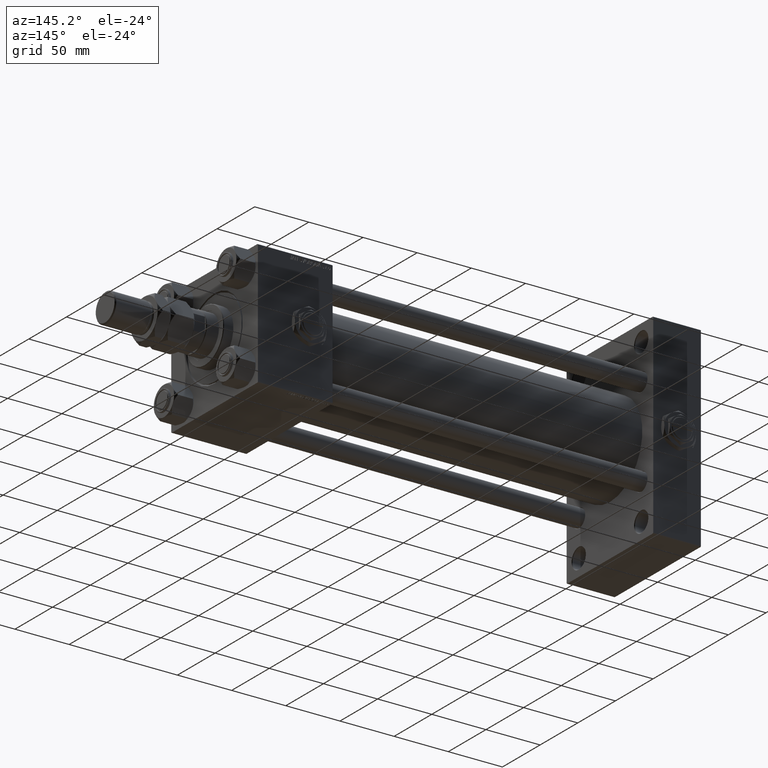
[diagram: clean part render]
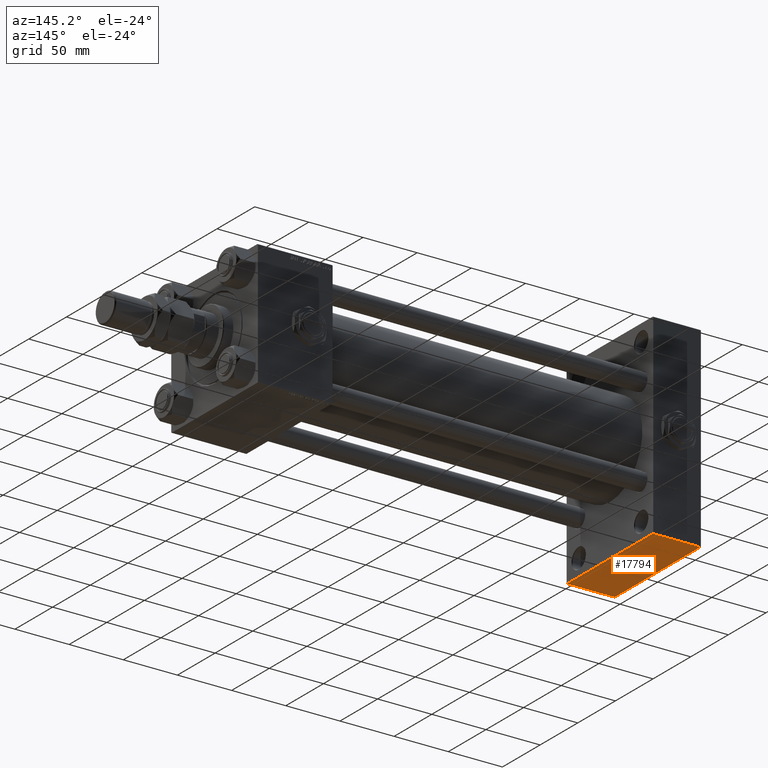
[diagram: same view with one face highlighted and labeled with its STEP entity id]
A machine part, auxiliary view. The second image highlights one B-rep face of the part: STEP entity #17794.
In plain terms, the highlighted planar face has unit normal (0, 0, -1).
Its self-contained STEP definition (entity closure, byte-faithful):
#26 = CARTESIAN_POINT ( 'NONE',  ( 0.000000000000000000, 57.50000000000000000, -90.00000000000000000 ) ) ;
#551 = CARTESIAN_POINT ( 'NONE',  ( 0.000000000000000000, -56.99999999999998579, -90.00000000000002842 ) ) ;
#1736 = EDGE_CURVE ( 'NONE', #28084, #9079, #47596, .T. ) ;
#4188 = VERTEX_POINT ( 'NONE', #33250 ) ;
#8438 = CARTESIAN_POINT ( 'NONE',  ( 44.00000000000000000, 57.50000000000000000, -90.00000000000000000 ) ) ;
#9079 = VERTEX_POINT ( 'NONE', #13828 ) ;
#11881 = EDGE_CURVE ( 'NONE', #46966, #28084, #45930, .T. ) ;
#13828 = CARTESIAN_POINT ( 'NONE',  ( 0.000000000000000000, -56.99999999999998579, -90.00000000000002842 ) ) ;
#13889 = CARTESIAN_POINT ( 'NONE',  ( 44.00000000000000000, 57.00000000000000000, -90.00000000000000000 ) ) ;
#16729 = DIRECTION ( 'NONE',  ( 0.000000000000000000, -1.000000000000000000, -2.413528314402514583E-16 ) ) ;
#17794 = ADVANCED_FACE ( 'NONE', ( #50208 ), #29405, .T. ) ;
#19062 = ORIENTED_EDGE ( 'NONE', *, *, #32206, .F. ) ;
#19406 = ORIENTED_EDGE ( 'NONE', *, *, #28180, .T. ) ;
#21217 = LINE ( 'NONE', #50502, #39337 ) ;
#21286 = EDGE_LOOP ( 'NONE', ( #19062, #19406, #24832, #38137 ) ) ;
#24653 = AXIS2_PLACEMENT_3D ( 'NONE', #33797, #41450, #46095 ) ;
#24832 = ORIENTED_EDGE ( 'NONE', *, *, #11881, .T. ) ;
#25909 = VECTOR ( 'NONE', #50648, 1000.000000000000000 ) ;
#28069 = CARTESIAN_POINT ( 'NONE',  ( 44.00000000000000000, -56.99999999999998579, -90.00000000000002842 ) ) ;
#28084 = VERTEX_POINT ( 'NONE', #28069 ) ;
#28180 = EDGE_CURVE ( 'NONE', #4188, #46966, #21217, .T. ) ;
#29405 = PLANE ( 'NONE',  #24653 ) ;
#29962 = DIRECTION ( 'NONE',  ( 1.000000000000000000, 0.000000000000000000, 0.000000000000000000 ) ) ;
#32206 = EDGE_CURVE ( 'NONE', #4188, #9079, #37530, .T. ) ;
#33250 = CARTESIAN_POINT ( 'NONE',  ( 0.000000000000000000, 57.00000000000000000, -90.00000000000000000 ) ) ;
#33797 = CARTESIAN_POINT ( 'NONE',  ( 44.00000000000000000, 57.50000000000000000, -90.00000000000000000 ) ) ;
#37530 = LINE ( 'NONE', #26, #38632 ) ;
#38137 = ORIENTED_EDGE ( 'NONE', *, *, #1736, .T. ) ;
#38632 = VECTOR ( 'NONE', #16729, 1000.000000000000000 ) ;
#39337 = VECTOR ( 'NONE', #29962, 1000.000000000000000 ) ;
#41450 = DIRECTION ( 'NONE',  ( 0.000000000000000000, 2.413528314402514583E-16, -1.000000000000000000 ) ) ;
#41825 = DIRECTION ( 'NONE',  ( 0.000000000000000000, -1.000000000000000000, -2.413528314402514583E-16 ) ) ;
#45930 = LINE ( 'NONE', #8438, #47154 ) ;
#46095 = DIRECTION ( 'NONE',  ( 0.000000000000000000, 1.000000000000000000, 2.413528314402514583E-16 ) ) ;
#46966 = VERTEX_POINT ( 'NONE', #13889 ) ;
#47154 = VECTOR ( 'NONE', #41825, 1000.000000000000000 ) ;
#47596 = LINE ( 'NONE', #551, #25909 ) ;
#50208 = FACE_OUTER_BOUND ( 'NONE', #21286, .T. ) ;
#50502 = CARTESIAN_POINT ( 'NONE',  ( 44.00000000000000000, 57.00000000000000000, -90.00000000000000000 ) ) ;
#50648 = DIRECTION ( 'NONE',  ( -1.000000000000000000, 0.000000000000000000, 0.000000000000000000 ) ) ;